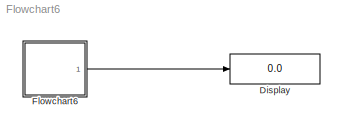
MODEL Flowchart6
KIND model
BLOCK [Display] Display
  Decimation = 1
  Ports = [1]
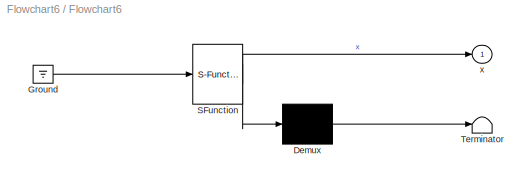
BLOCK [SubSystem] Flowchart6
  MaskDescription = Stateflow diagram
  MaskDisplay = plot(sf('Private','sfblk','xIcon'),sf('Private','sfblk','yIcon'));text(0.5,0,sf('Private', 'sfblk', 'tIcon'),'HorizontalAl','Center','VerticalAl','Bottom');
  MaskIconFrame = off
  MaskIconOpaque = off
  MaskIconRotate = none
  MaskIconUnits = autoscale
  MaskSelfModifiable = on
  MaskType = Stateflow
  MinAlgLoopOccurrences = off
  Ports = [0, 1]
  RTWSystemCode = Auto
  TreatAsAtomicUnit = off
BLOCK [Demux] Flowchart6/ Demux 
  Outputs = 1
  Ports = [1, 1]
BLOCK [Ground] Flowchart6/ Ground 
BLOCK [S-Function] Flowchart6/ SFunction 
  FunctionName = sf_sfun
  PortCounts = [1 2]
  Ports = [1, 2]
  Tag = Stateflow S-Function Flowchart6 1
BLOCK [Terminator] Flowchart6/ Terminator 
BLOCK [Outport] Flowchart6/x
  BusOutputAsStruct = off
  IconDisplay = Port number
LINE Flowchart6/ Demux :1 -> Flowchart6/ Terminator :1
LINE Flowchart6/ Ground :1 -> Flowchart6/ SFunction :1
LINE Flowchart6/ SFunction :1 -> Flowchart6/ Demux :1
LINE Flowchart6/ SFunction :2 -> Flowchart6/x:1
LINE Flowchart6:1 -> Display:1
CHART Flowchart6 states=1 transitions=3
  STATE_LABEL 'A'
